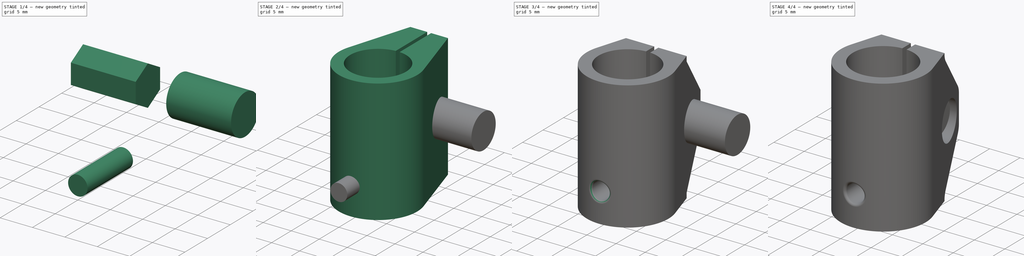
[diagram: build sequence overview — one tinted view per stage of 4, left to right]
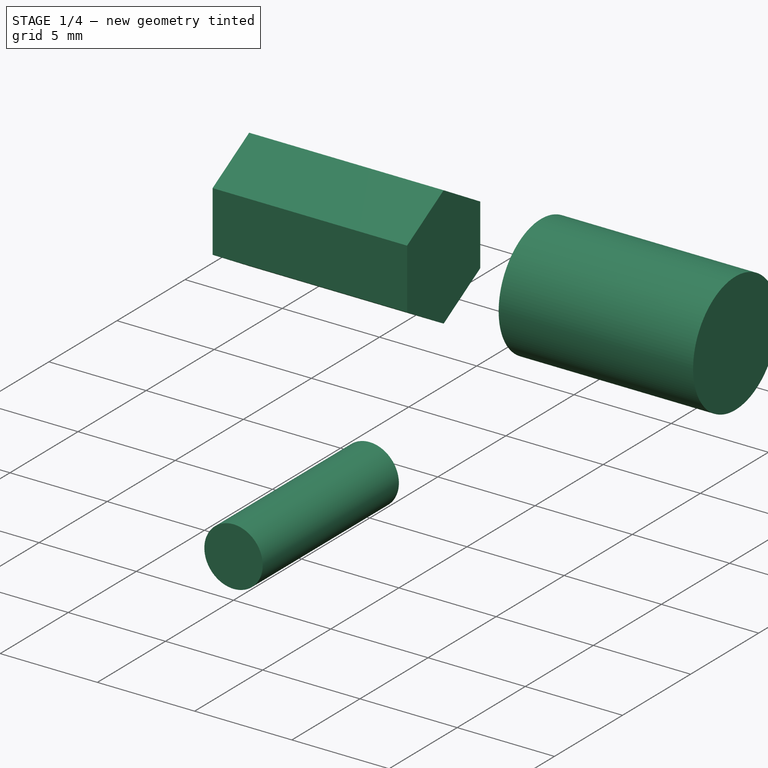
[diagram: stage 1 of 4 — iso view after this stage's code; geometry added in this stage tinted green]
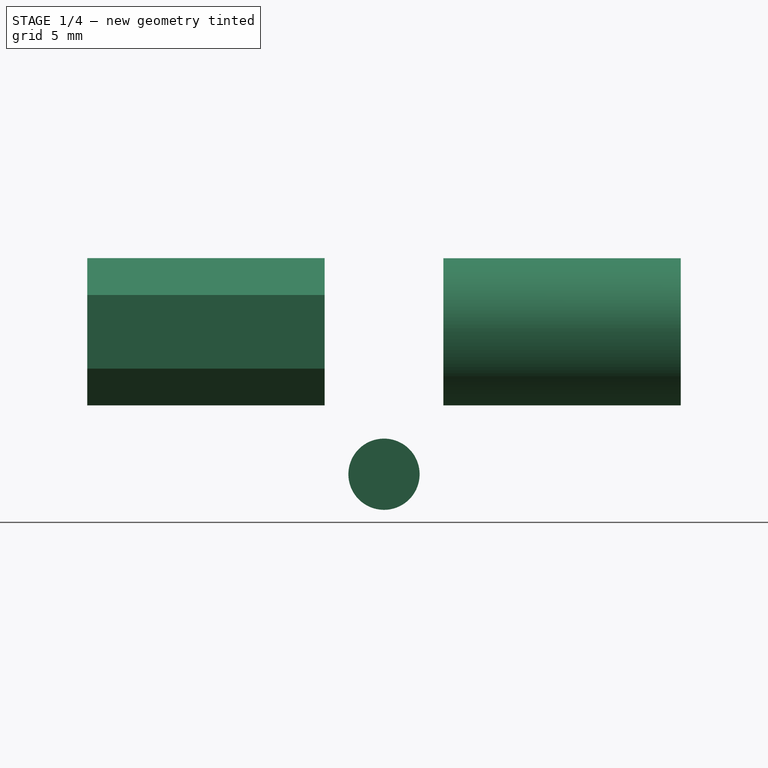
[diagram: stage 1 of 4 — front view after this stage's code; geometry added in this stage tinted green]
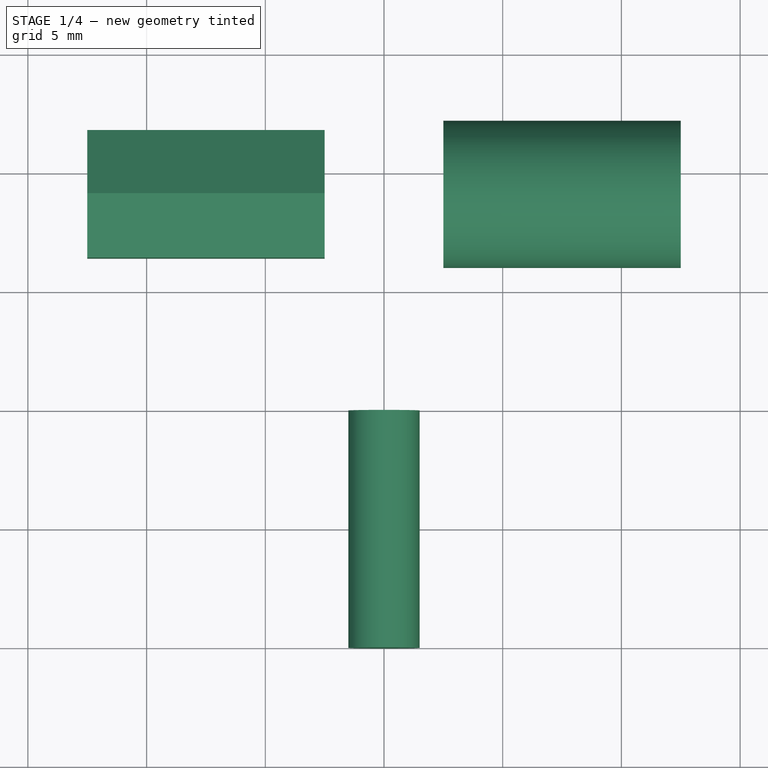
[diagram: stage 1 of 4 — top view after this stage's code; geometry added in this stage tinted green]
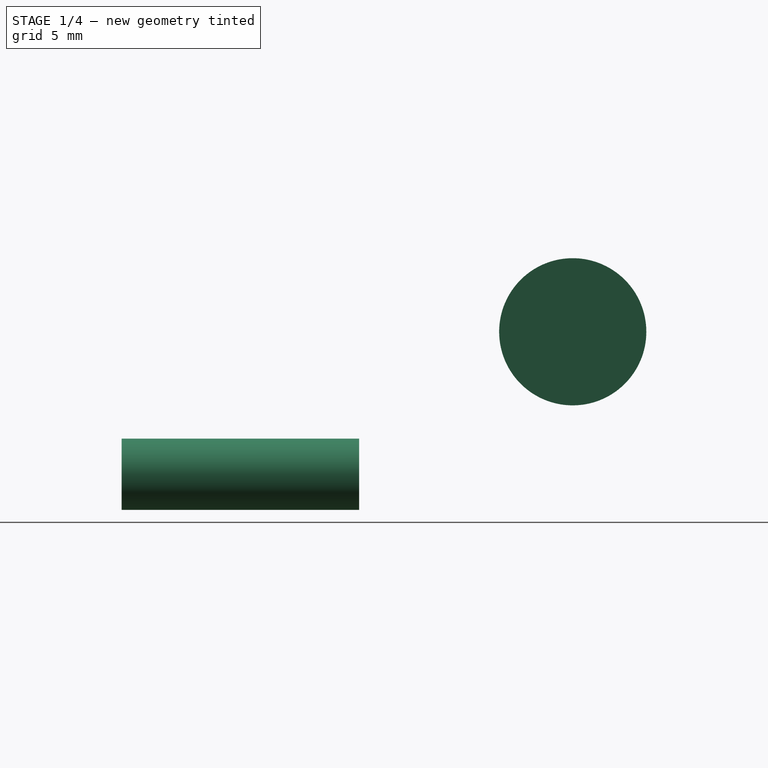
[diagram: stage 1 of 4 — right view after this stage's code; geometry added in this stage tinted green]
FCSTD DOCUMENT  (FreeCAD 0.16RUnknown)
Label: joint-i-bottom.006
License: All rights reserved
LicenseURL: http://en.wikipedia.org/wiki/All_rights_reserved
objects: Sketcher::SketchObject×7, Part::Extrusion×4, PartDesign::Pocket×3, Part::Cut×3, Part::Fillet×2
note: 22 computed .brp shape members not serialized (recipe doc carries the construction recipe); baked Part::Feature solids carry a one-line shape summary decoded from their .brp

FEATURE [Sketcher::SketchObject] Sketch003
  Placement = pos=(0,0,0) rot=(1,0,0;1.5708rad)
  sketch-geometry (1):
    g0: Circle CenterX=0 CenterY=5 CenterZ=0 NormalX=0 NormalY=0 NormalZ=1 Radius=1.5
  constraints (3):
    c: PointOnObject(g0,g-2)
    c: DistanceY(g-1,g0) = 5
    c: Radius(g0) = 1.5
FEATURE [Part::Extrusion] Extrude001
  Base = -> Sketch003
  Dir = (0,-10,0)
  Solid = true
FEATURE [Sketcher::SketchObject] Sketch005
  Placement = pos=(2.5,0,0) rot=(0.57735,0.57735,0.57735;2.0944rad)
  sketch-geometry (1):
    g0: Circle CenterX=9 CenterY=11 CenterZ=0 NormalX=0 NormalY=0 NormalZ=1 Radius=3.1
  constraints (3):
    c: DistanceX(g-1,g0) = 9
    c: DistanceY(g-1,g0) = 11
    c: Radius(g0) = 3.1
FEATURE [Part::Extrusion] Extrude002
  Base = -> Sketch005
  Dir = (10,0,0)
  Solid = true
FEATURE [Sketcher::SketchObject] Sketch006
  Placement = pos=(-2.5,0,0) rot=(0.57735,-0.57735,-0.57735;2.0944rad)
  sketch-geometry (7):
    g0: LineSegment StartX=-9 StartY=14.1 StartZ=0 EndX=-11.6847 EndY=12.55 EndZ=0
    g1: LineSegment StartX=-11.6847 StartY=12.55 StartZ=0 EndX=-11.6847 EndY=9.45 EndZ=0
    g2: LineSegment StartX=-11.6847 StartY=9.45 StartZ=0 EndX=-9 EndY=7.9 EndZ=0
    g3: LineSegment StartX=-9 StartY=7.9 StartZ=0 EndX=-6.31532 EndY=9.45 EndZ=0
    g4: LineSegment StartX=-6.31532 StartY=9.45 StartZ=0 EndX=-6.31532 EndY=12.55 EndZ=0
    g5: LineSegment StartX=-6.31532 StartY=12.55 StartZ=0 EndX=-9 EndY=14.1 EndZ=0
    g6: Circle [constr] CenterX=-9 CenterY=11 CenterZ=0 NormalX=0 NormalY=0 NormalZ=1 Radius=3.1
  constraints (17):
    c: Coincident(g0,g1)
    c: Coincident(g1,g2)
    c: Coincident(g2,g3)
    c: Coincident(g3,g4)
    c: Coincident(g4,g5)
    c: Coincident(g5,g0)
    c: Equal(g0, g1-g5) x5
    c: PointOnObject(g0,g6)
    c: PointOnObject(g1,g6)
    c: PointOnObject(g2,g6)
    c: PointOnObject(g3,g6)
    c: PointOnObject(g4,g6)
    c: PointOnObject(g5,g6)
    c: Vertical(g4)
    c: DistanceX(g6,g-1) = 9
    c: DistanceY(g-1,g6) = 11
    c: Radius(g6) = 3.1
FEATURE [Part::Extrusion] Extrude003
  Base = -> Sketch006
  Dir = (-10,0,0)
  Solid = true
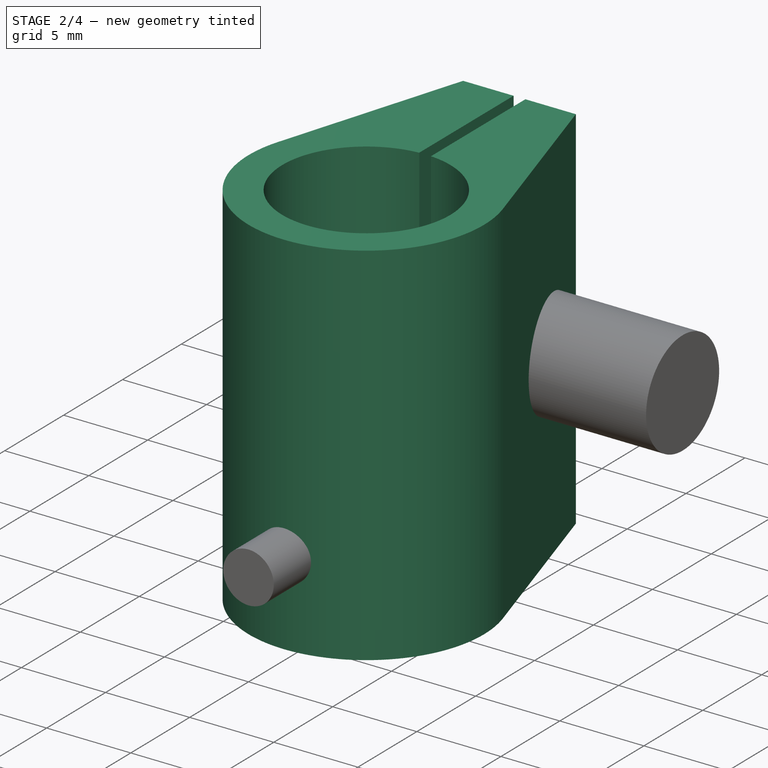
[diagram: stage 2 of 4 — iso view after this stage's code; geometry added in this stage tinted green]
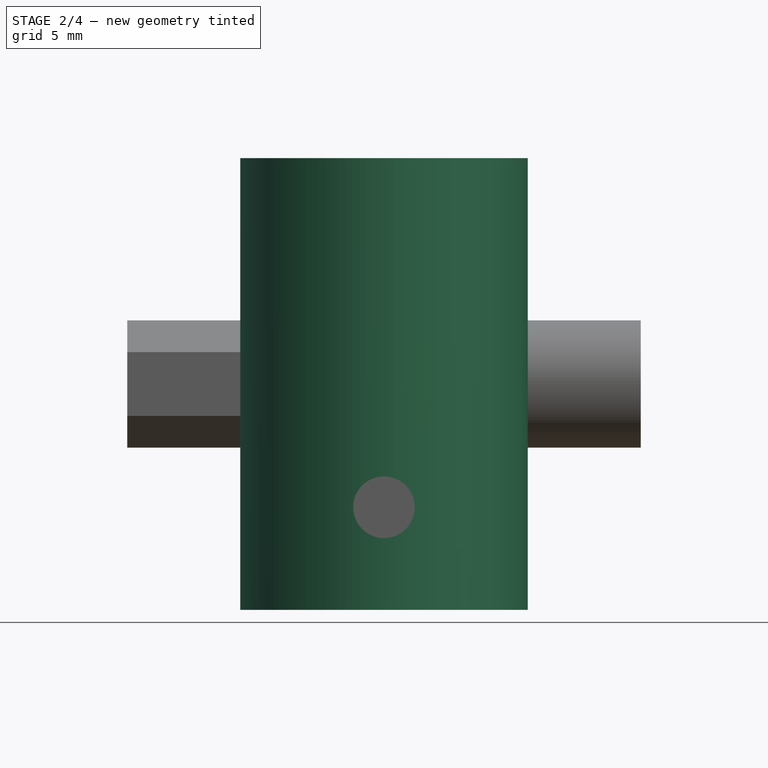
[diagram: stage 2 of 4 — front view after this stage's code; geometry added in this stage tinted green]
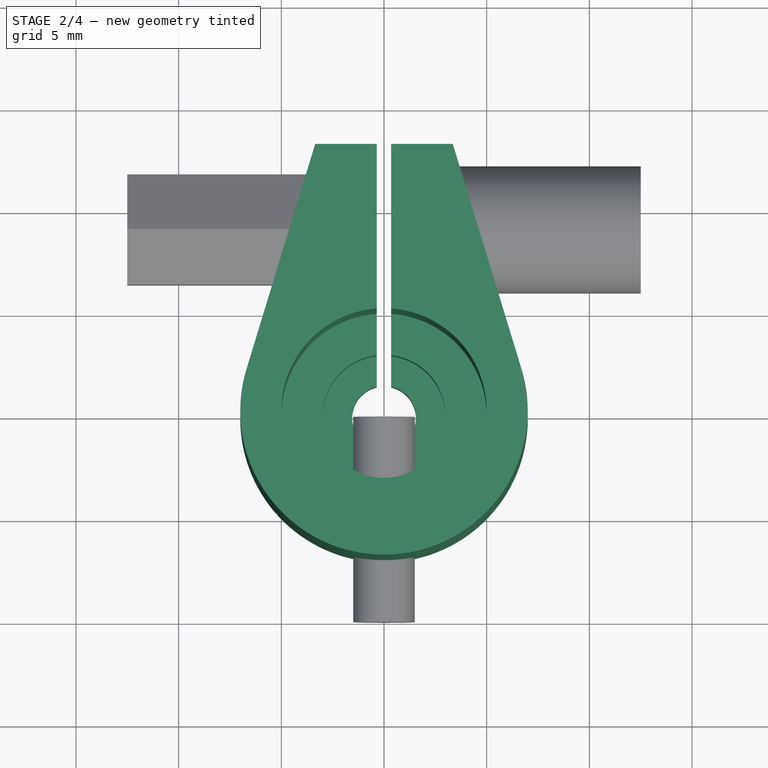
[diagram: stage 2 of 4 — top view after this stage's code; geometry added in this stage tinted green]
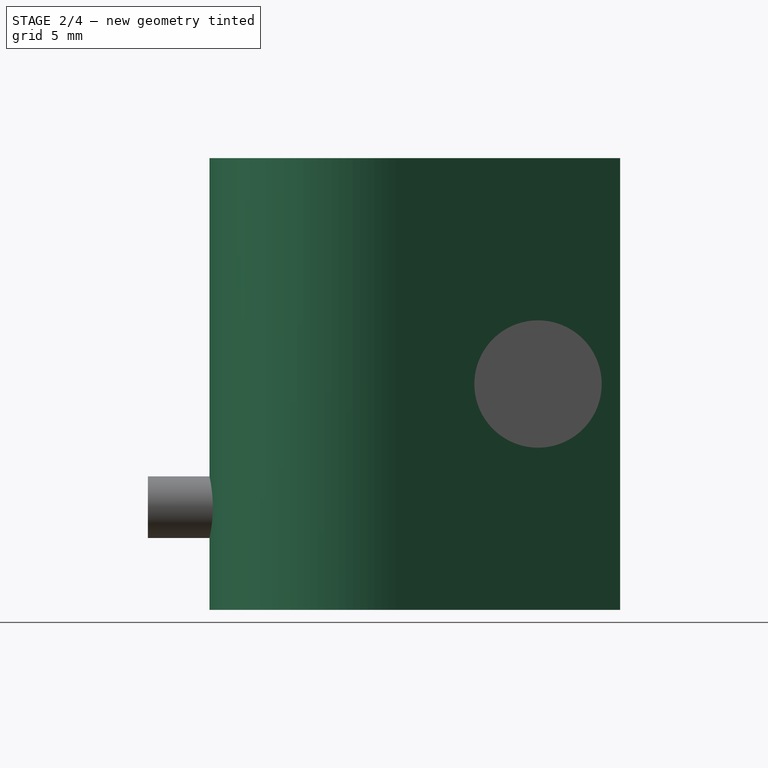
[diagram: stage 2 of 4 — right view after this stage's code; geometry added in this stage tinted green]
FEATURE [Sketcher::SketchObject] Sketch
  sketch-geometry (11):
    g0: ArcOfCircle CenterX=0 CenterY=0 CenterZ=0 NormalX=0 NormalY=0 NormalZ=1 Radius=1.55 StartAngle=1.79857 EndAngle=7.62621
    g1: Circle [constr] CenterX=0 CenterY=0 CenterZ=0 NormalX=0 NormalY=0 NormalZ=1 Radius=5
    g2: ArcOfCircle CenterX=0 CenterY=0 CenterZ=0 NormalX=0 NormalY=0 NormalZ=1 Radius=7 StartAngle=2.84527 EndAngle=6.5795
    g3: LineSegment [constr] StartX=5 StartY=0 StartZ=0 EndX=7 EndY=0 EndZ=0
    g4: LineSegment StartX=-6.69492 StartY=2.04402 StartZ=0 EndX=-3.35 EndY=13 EndZ=0
    g5: LineSegment StartX=-3.35 StartY=13 StartZ=0 EndX=-0.35 EndY=13 EndZ=0
    g6: LineSegment StartX=-0.35 StartY=13 StartZ=0 EndX=-0.35 EndY=1.50997 EndZ=0
    g7: LineSegment StartX=0.35 StartY=1.50997 StartZ=0 EndX=0.35 EndY=13 EndZ=0
    g8: LineSegment StartX=0.35 StartY=13 StartZ=0 EndX=3.35 EndY=13 EndZ=0
    g9: LineSegment StartX=3.35 StartY=13 StartZ=0 EndX=6.69493 EndY=2.04398 EndZ=0
    g10: LineSegment [constr] StartX=-0.35 StartY=1.50997 StartZ=0 EndX=0.35 EndY=1.50997 EndZ=0
  constraints (33):
    c: Coincident(g0,g-1)
    c: Radius(g0) = 1.55
    c: Coincident(g0,g1)
    c: Radius(g1) = 5
    c: Coincident(g0,g2)
    c: Horizontal(g3)
    c: PointOnObject(g3,g2)
    c: PointOnObject(g3,g1)
    c: PointOnObject(g3,g-1)
    c: DistanceX(g3,g3) = 2
    c: Coincident(g4,g5)
    c: Horizontal(g5)
    c: Coincident(g5,g6)
    c: Vertical(g6)
    c: Vertical(g7)
    c: Coincident(g7,g8)
    c: Horizontal(g8)
    c: Coincident(g8,g9)
    c: Equal(g6,g7)
    c: Equal(g5,g8)
    c: Tangent(g4,g2)
    c: Tangent(g9,g2)
    c: Coincident(g0,g6)
    c: Coincident(g0,g7)
    c: DistanceY(g-1,g5) = 13
    c: DistanceX(g8,g8) = 3
    c: Horizontal(g10)
    c: Coincident(g7,g0)
    c: Coincident(g7,g10)
    c: Coincident(g0,g10)
    c: DistanceX(g10,g10) = 0.7
    c: Coincident(g2,g4)
    c: Coincident(g2,g9)
FEATURE [Part::Extrusion] Extrude
  Base = -> Sketch
  Dir = (0,0,22)
  Solid = true
FEATURE [Sketcher::SketchObject] Sketch001
  Placement = pos=(0,0,22) rot=(0,0,1;0rad)
  Support = -> Extrude [Face10]
  sketch-geometry (1):
    g0: Circle CenterX=0 CenterY=0 CenterZ=0 NormalX=0 NormalY=0 NormalZ=1 Radius=5
  constraints (2):
    c: Coincident(g0,g-1)
    c: Radius(g0) = 5
FEATURE [PartDesign::Pocket] Pocket
  Length = 15
  Sketch = -> Sketch001
  Type = 0
FEATURE [Sketcher::SketchObject] Sketch002
  ExternalGeometry = -> [Pocket]
  Placement = pos=(0,0,7) rot=(0,0,1;0rad)
  Support = -> Pocket [Face13]
  sketch-geometry (2):
    g0: Circle CenterX=0 CenterY=0 CenterZ=0 NormalX=0 NormalY=0 NormalZ=1 Radius=3
    g1: LineSegment [constr] StartX=3 StartY=0 StartZ=0 EndX=5 EndY=0 EndZ=0
  constraints (5):
    c: Coincident(g0,g-1)
    c: Horizontal(g1)
    c: Coincident(g-3,g1)
    c: PointOnObject(g1,g0)
    c: DistanceX(g1,g1) = 2
FEATURE [PartDesign::Pocket] Pocket001
  Length = 4
  Sketch = -> Sketch002
  Type = 0
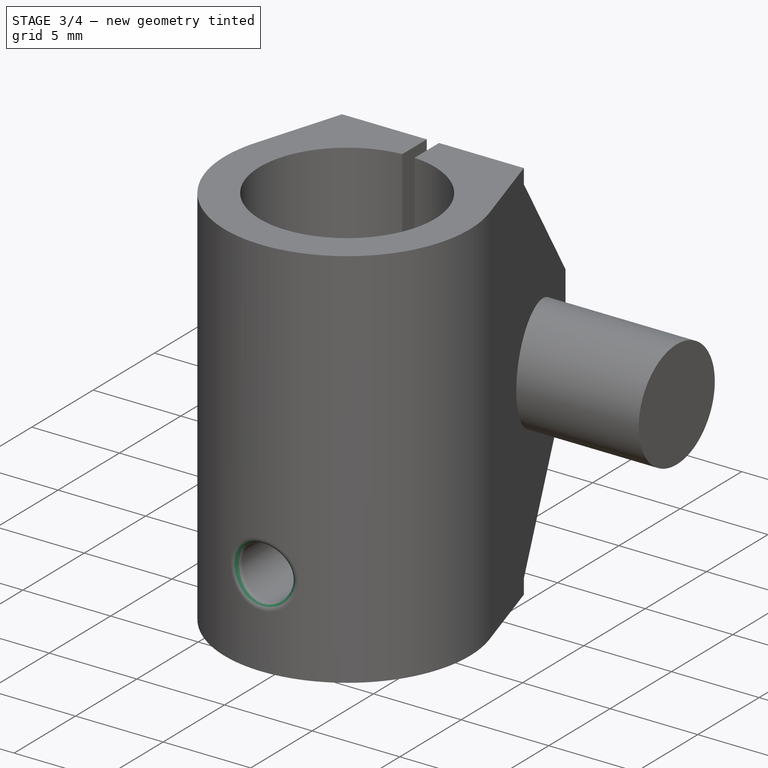
[diagram: stage 3 of 4 — iso view after this stage's code; geometry added in this stage tinted green]
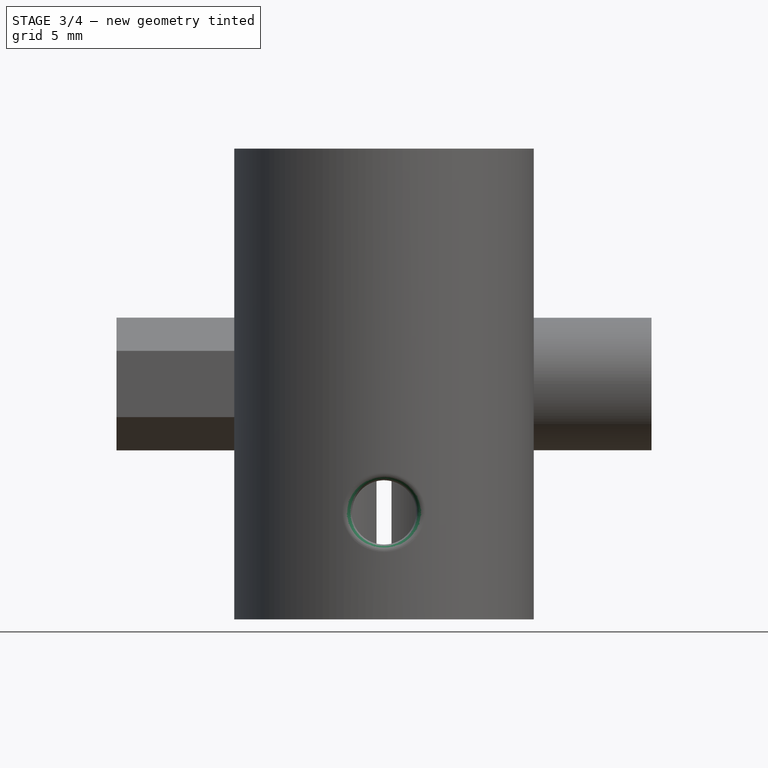
[diagram: stage 3 of 4 — front view after this stage's code; geometry added in this stage tinted green]
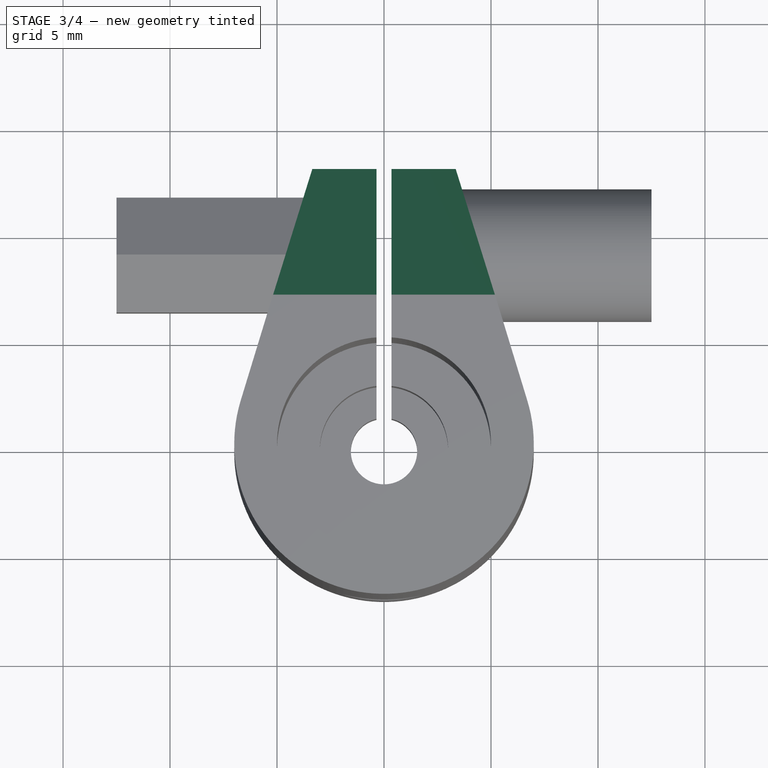
[diagram: stage 3 of 4 — top view after this stage's code; geometry added in this stage tinted green]
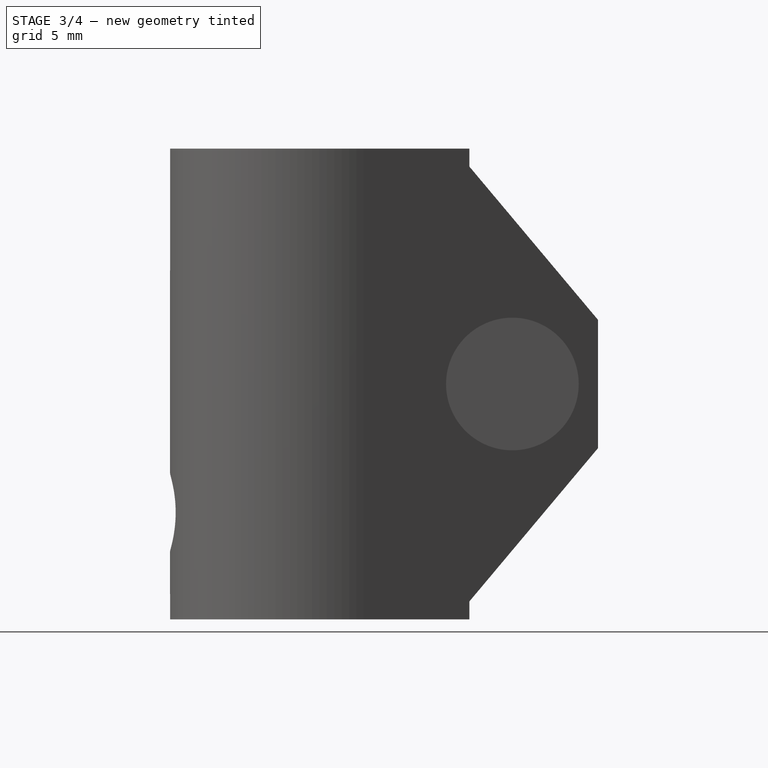
[diagram: stage 3 of 4 — right view after this stage's code; geometry added in this stage tinted green]
FEATURE [Part::Cut] Cut
  Base = -> Pocket001
  Tool = -> Extrude001
FEATURE [Part::Fillet] Fillet
  Base = -> Cut
  Edges = 2 edges r=0.35: [Edge8,Edge24]
FEATURE [Sketcher::SketchObject] Sketch004
  ExternalGeometry = -> [Fillet]
  Placement = pos=(-0.35,0,0) rot=(0.57735,0.57735,0.57735;2.0944rad)
  Support = -> Fillet [Face9]
  sketch-geometry (12):
    g0: LineSegment [constr] StartX=4.98773 StartY=22 StartZ=0 EndX=8.99387 EndY=11 EndZ=0
    g1: LineSegment [constr] StartX=8.99387 StartY=11 StartZ=0 EndX=13 EndY=0 EndZ=0
    g2: Circle CenterX=8.99387 CenterY=11 CenterZ=0 NormalX=0 NormalY=0 NormalZ=1 Radius=1.55
    g3: LineSegment [constr] StartX=4.98773 StartY=22 StartZ=0 EndX=6.98773 EndY=22 EndZ=0
    g4: LineSegment StartX=6.98773 StartY=22 StartZ=0 EndX=6.98773 EndY=21.1651 EndZ=0
    g5: LineSegment StartX=6.98773 StartY=21.1651 StartZ=0 EndX=13 EndY=14 EndZ=0
    g6: LineSegment StartX=13 StartY=8 StartZ=0 EndX=6.98773 EndY=0.834862 EndZ=0
    g7: LineSegment StartX=6.98773 StartY=0.834862 StartZ=0 EndX=6.98773 EndY=0 EndZ=0
    g8: LineSegment StartX=6.98773 StartY=0 StartZ=0 EndX=13 EndY=0 EndZ=0
    g9: LineSegment StartX=6.98773 StartY=22 StartZ=0 EndX=13 EndY=22 EndZ=0
    g10: LineSegment StartX=13 StartY=22 StartZ=0 EndX=13 EndY=14 EndZ=0
    g11: LineSegment StartX=13 StartY=8 StartZ=0 EndX=13 EndY=0 EndZ=0
  constraints (33):
    c: Coincident(g0,g1)
    c: Parallel(g0,g1)
    c: Equal(g0,g1)
    c: Coincident(g0,g2)
    c: Radius(g2) = 1.55
    c: Horizontal(g3)
    c: Coincident(g3,g4)
    c: Vertical(g4)
    c: Coincident(g4,g5)
    c: Coincident(g6,g7)
    c: Vertical(g7)
    c: Coincident(g0,g3)
    c: Equal(g7,g4)
    c: Equal(g5,g6)
    c: Angle(g5,g4) = 2.44346
    c: DistanceX(g3,g3) = 2
    c: Horizontal(g8)
    c: Coincident(g7,g8)
    c: Horizontal(g9)
    c: Coincident(g9,g10)
    c: Vertical(g10)
    c: Vertical(g11)
    c: Coincident(g6,g11)
    c: Coincident(g3,g9)
    c: Coincident(g5,g10)
    c: Coincident(g9,g-4)
    c: DistanceY(g6,g5) = 6
    c: Equal(g8,g9)
    c: PointOnObject(g6,g-4)
    c: Coincident(g8,g11)
    c: Coincident(g0,g-3)
    c: Coincident(g1,g8)
    c: Coincident(g1,g-4)
FEATURE [PartDesign::Pocket] Pocket002
  Length = 5
  Midplane = true
  Sketch = -> Sketch004
  Type = 1
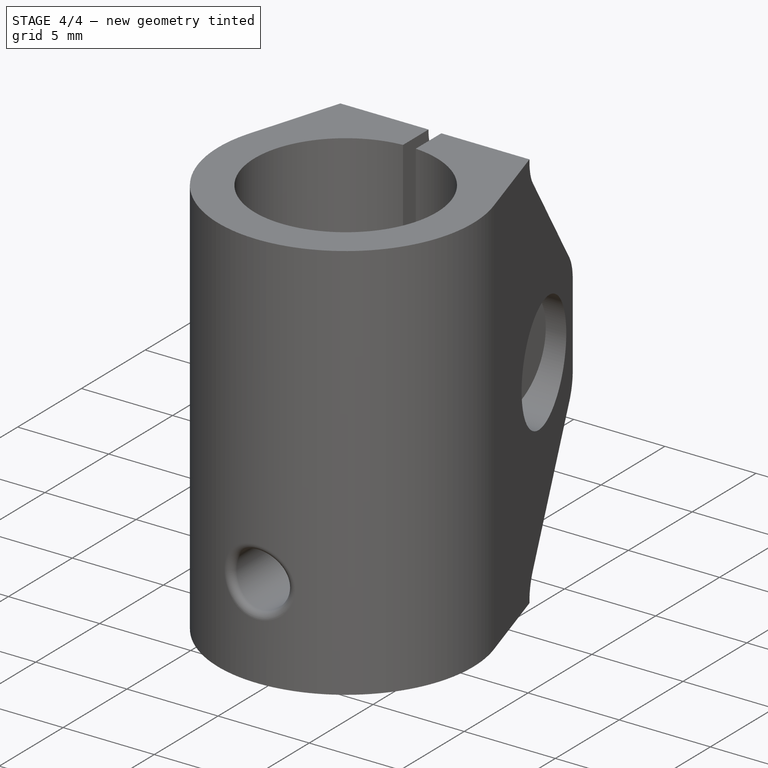
[diagram: stage 4 of 4 — iso view after this stage's code; geometry added in this stage tinted green]
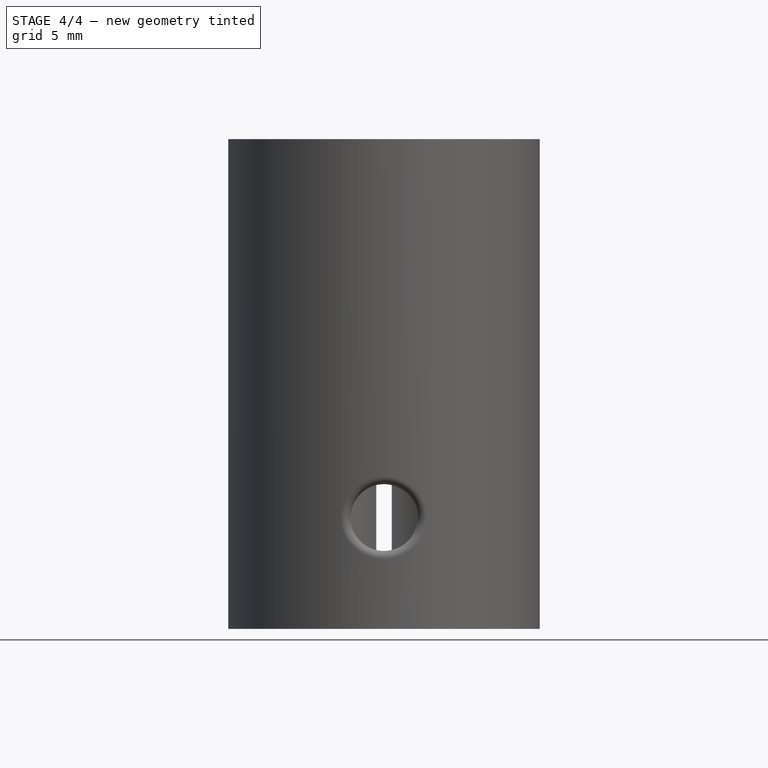
[diagram: stage 4 of 4 — front view after this stage's code; geometry added in this stage tinted green]
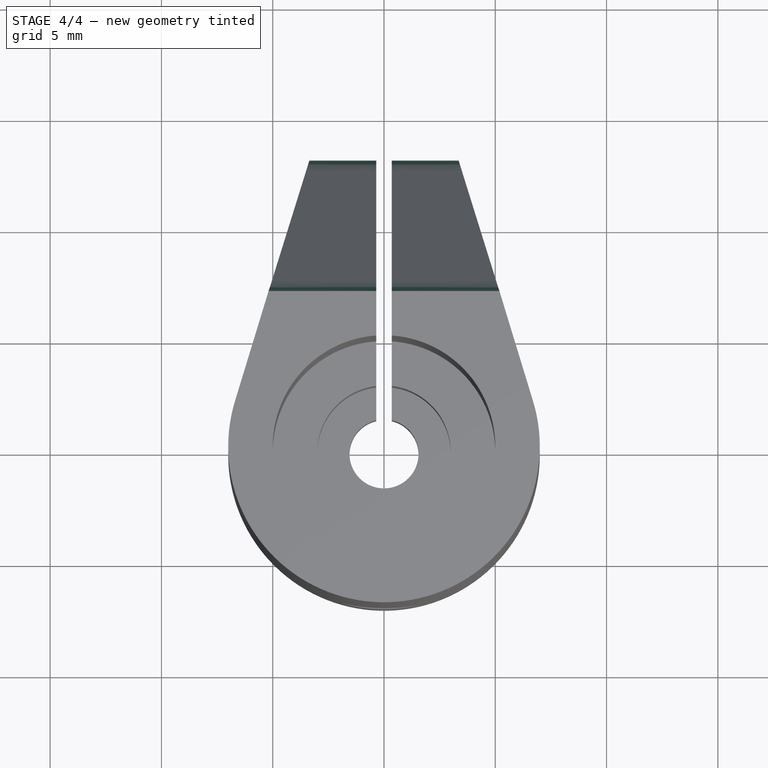
[diagram: stage 4 of 4 — top view after this stage's code; geometry added in this stage tinted green]
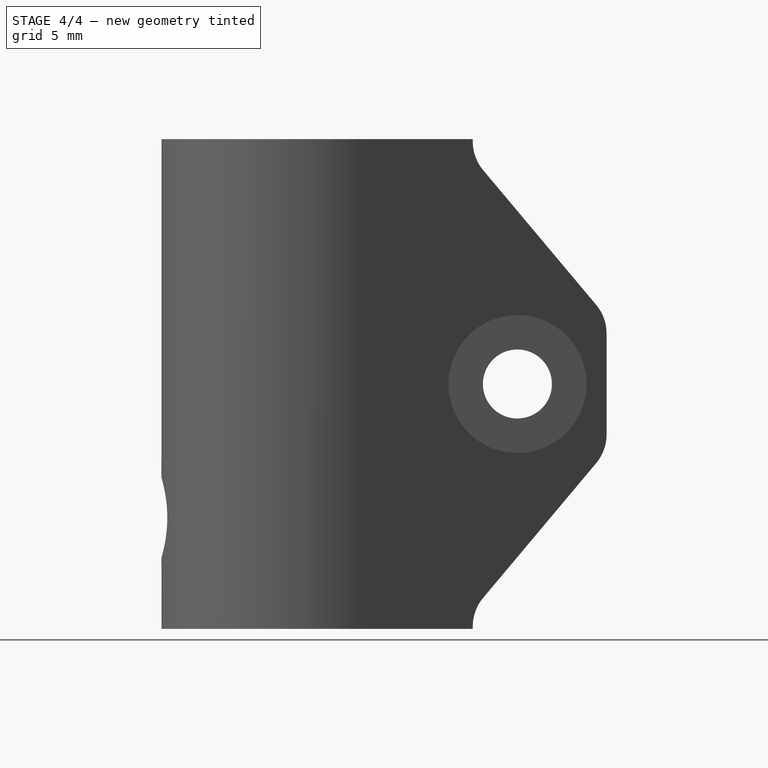
[diagram: stage 4 of 4 — right view after this stage's code; geometry added in this stage tinted green]
FEATURE [Part::Cut] Cut001
  Base = -> Pocket002
  Tool = -> Extrude002
FEATURE [Part::Cut] Cut003  label="Cut002"
  Base = -> Cut001
  Tool = -> Extrude003
FEATURE [Part::Fillet] Fillet001
  Base = -> Cut003
  Edges = 8 edges r=2: [Edge43,Edge45,Edge47,Edge49,Edge64,Edge82,Edge86,Edge87]
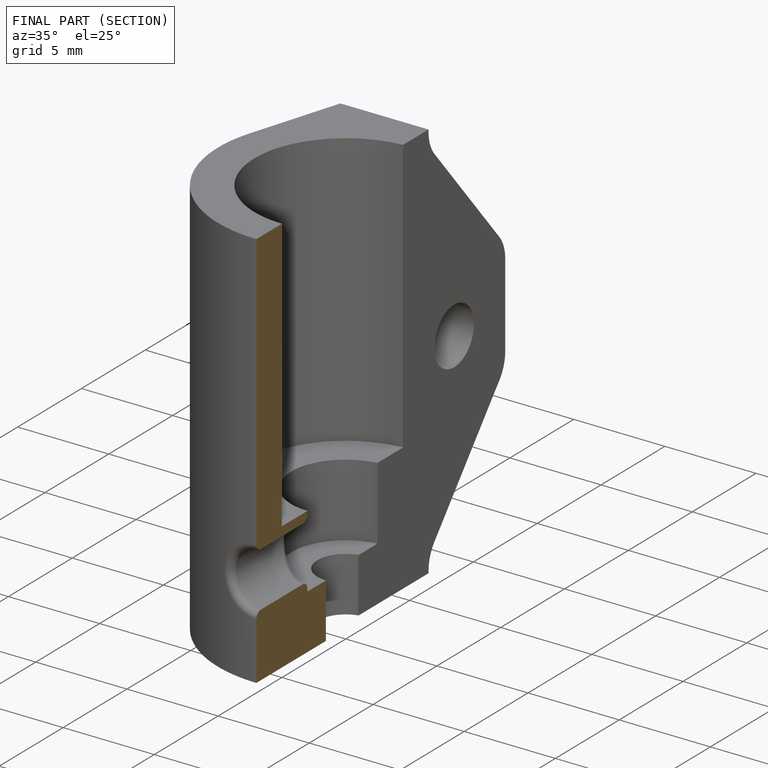
[diagram: finished part — half-section view (interior)]
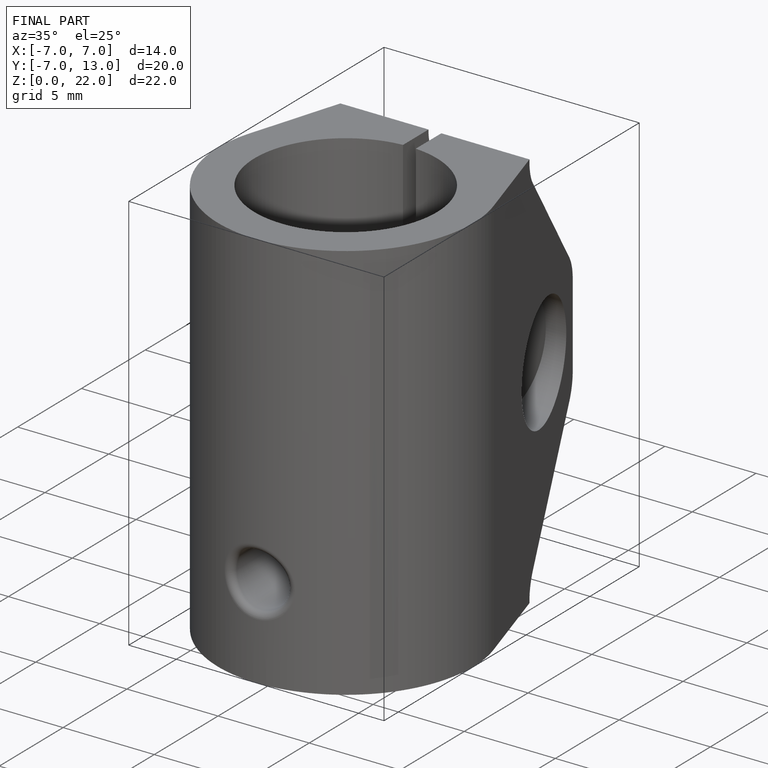
[diagram: finished part — iso view with bounding-box wireframe]
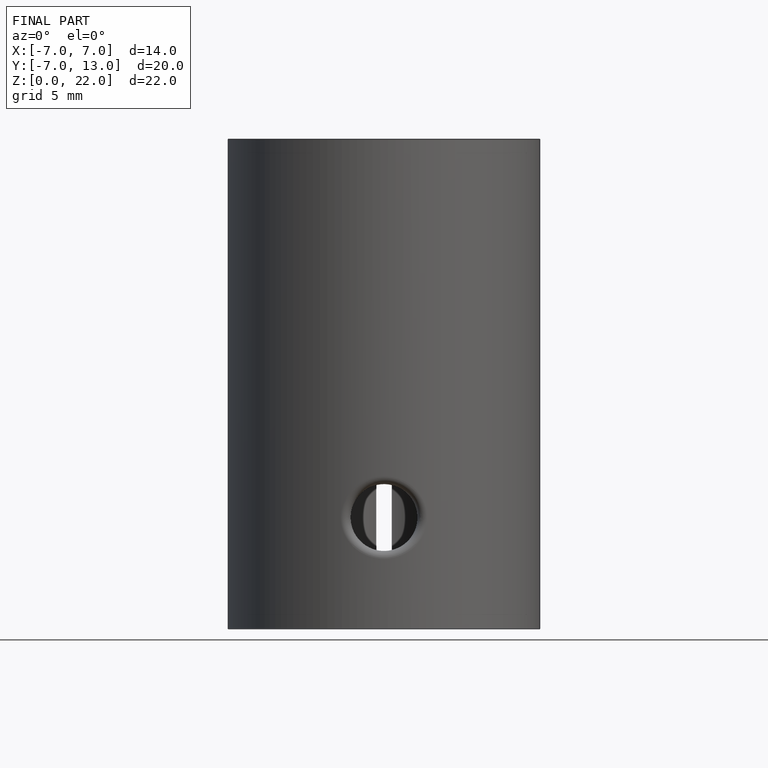
[diagram: finished part — front view with bounding-box wireframe]
